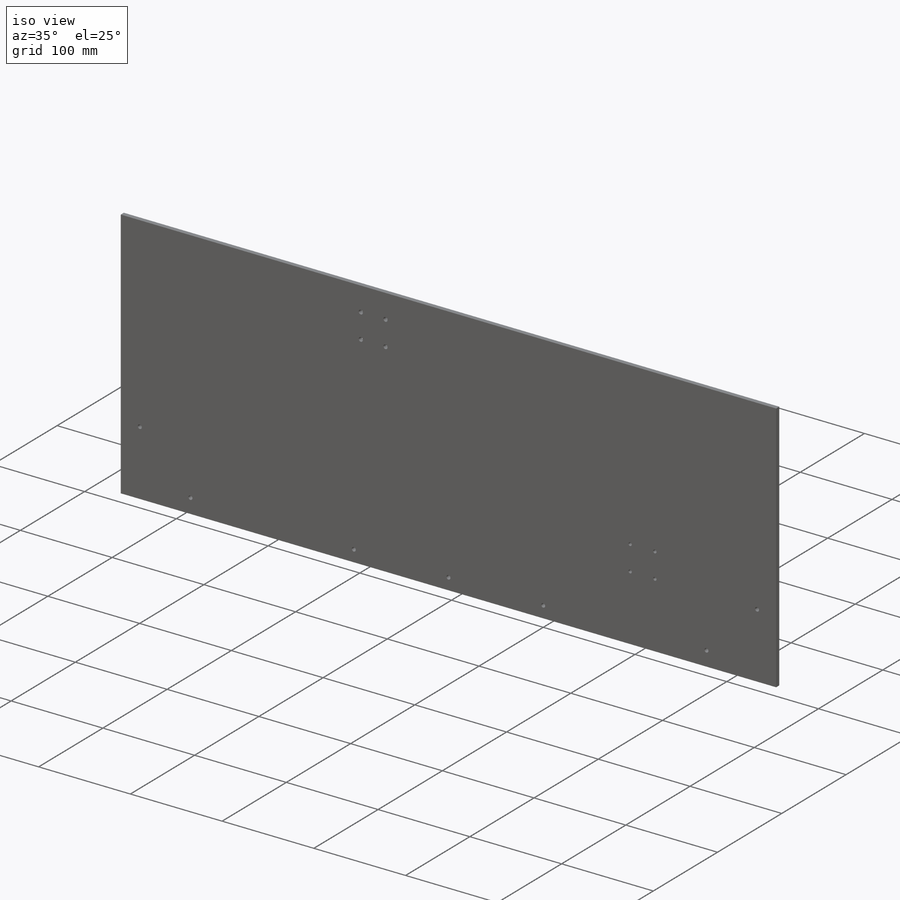
[diagram: iso view]
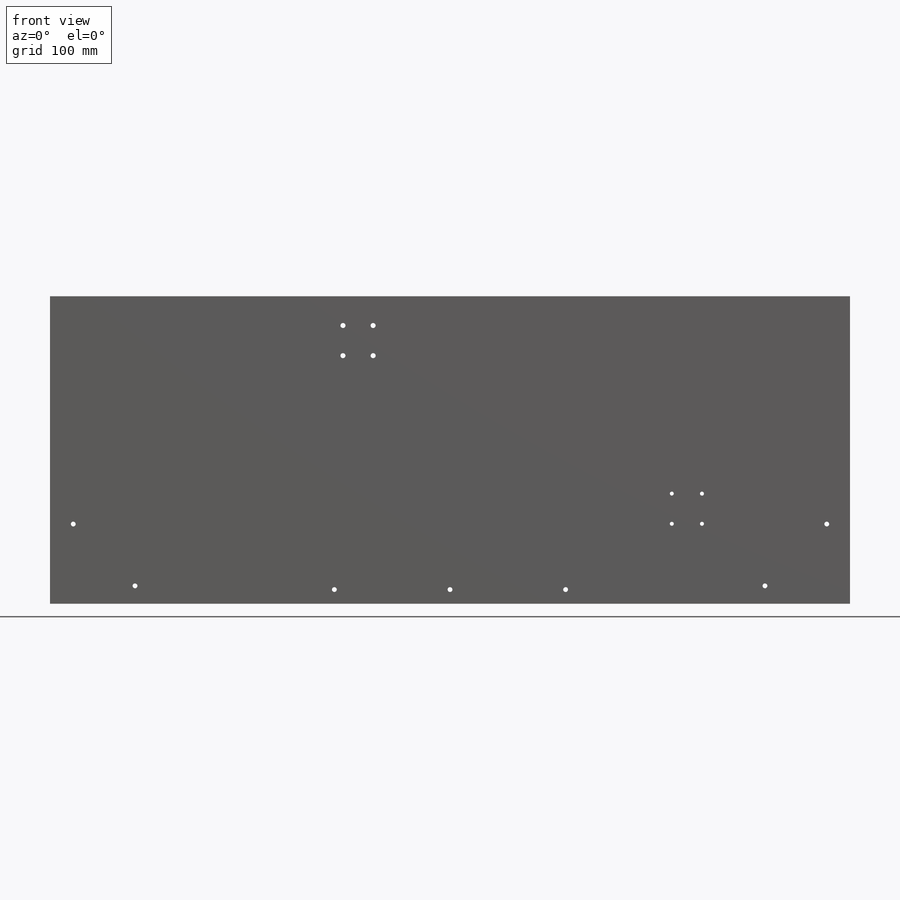
[diagram: front view]
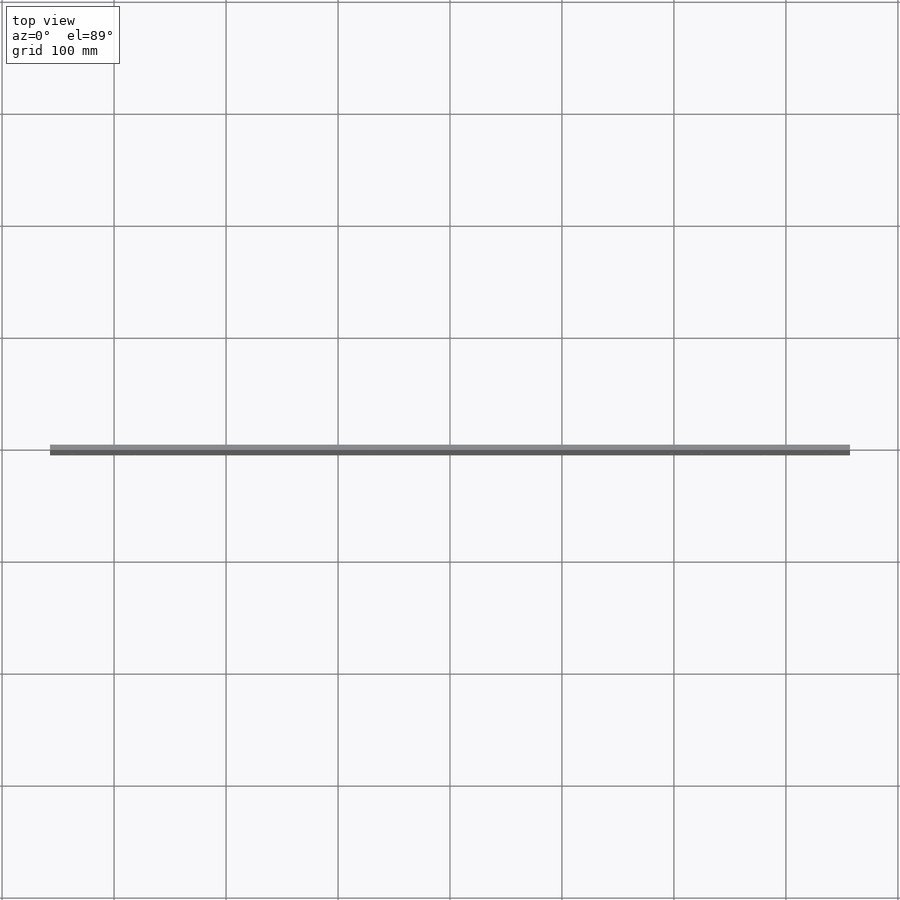
[diagram: top view]
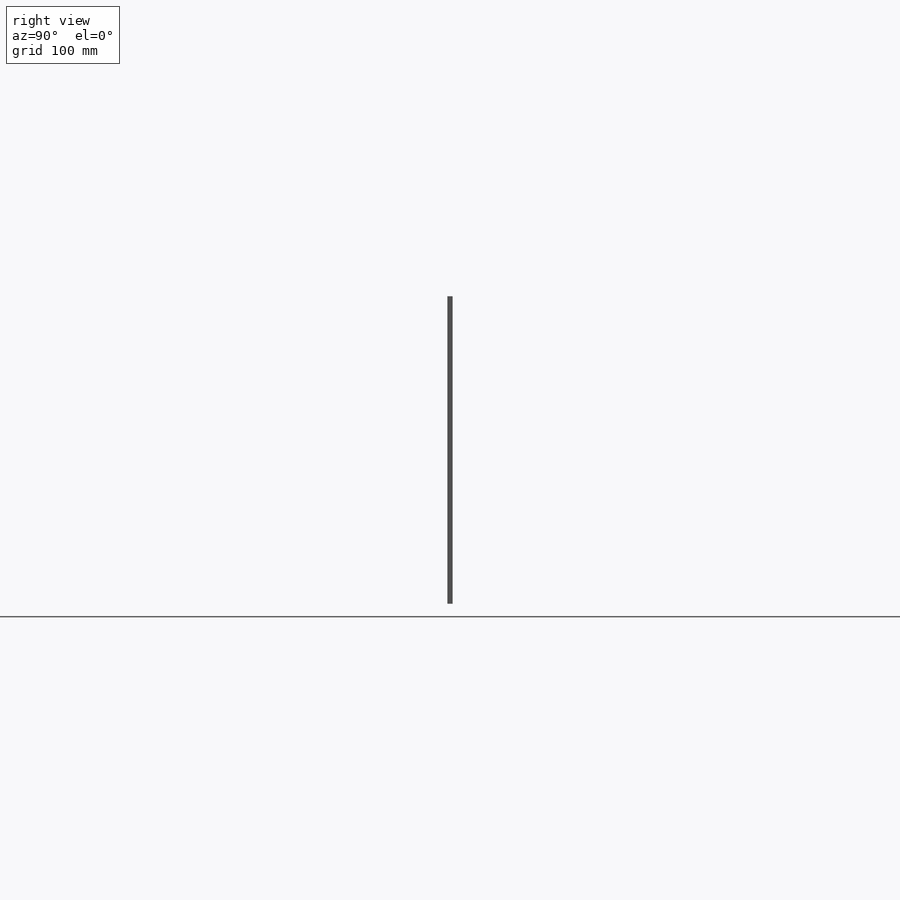
[diagram: right view]
SOLIDWORKS PART (.sldprt)
format: sldprt  version: not decoded by parser v0  size: 446,464 bytes
history: native  units: mm
features: sketch x12, cut_extrude x4, hole x3, extrude x2, material x1 (+12 scaffold rows collapsed)
feature tree (34):
  scaffold x12  (default folders/planes/origin — collapsed)
  material  "Material <not specified>"
  sketch  "Sketch1"  dims[D1=714.375mm D2=274.6375mm]
  extrude  "Boss-Extrude1"  Depth=4.7625mm
  sketch  "Sketch2"  dims[c1.D2=34.925mm c1.D3=5.25mm c1.D1=63.5mm c2.D3=279.4mm c2.D4=20.0mm c2.D5=~14.142136mm c3.D5=45.0deg c3.D7=317.5mm c3.D8=317.5mm c3.D6=4.0]
  cut_extrude  "Cut-Extrude1"  [1 undecoded]
  sketch  "Sketch4"  dims[c1.D1=6.35mm c1.D2=63.5mm c1.D3=8.89mm c1.D4=4.4958mm c1.D5=~178.59375mm c1.D6=357.1875mm c2.D5=279.4mm c2.D6=279.4mm c2.D7=25.4mm]
  cut_extrude  "Cut-Extrude3"  [1 undecoded]
  sketch  "Sketch5"  dims[D2=4.3053mm D1=63.5mm D3=127.0mm D4=215.9mm]
  cut_extrude  "Cut-Extrude4"  [1 undecoded]
  sketch  "Sketch7"
  extrude  "Boss-Extrude2"  [1 undecoded]
  hole  "#8 Clearance Hole1"  Diameter=4.3053mm Depth=74.422mm
  sketch  "Sketch9"  dims[D1=~20.77212mm D2=~75.94854mm D3=~71.18604mm D4=~16.00962mm D5=~20.77212mm D6=~75.94854mm]
  sketch  "Sketch8"  dims[hole-wizard template sketch: 50 standard entries collapsed; hole parameters above]
  hole  "#8 Clearance Hole2"  Diameter=4.3053mm Depth=74.422mm
  sketch  "Sketch12"  dims[D1=12.7mm D2=103.251mm D3=103.251mm]
  sketch  "Sketch11"  dims[hole-wizard template sketch: 50 standard entries collapsed; hole parameters above]
  hole  "#8 Clearance Hole3"  Diameter=4.4958mm Depth=74.422mm
  sketch  "Sketch15"  dims[D1=26.162mm D2=26.924mm D3=26.924mm D4=261.62mm]
  sketch  "Sketch14"  dims[hole-wizard template sketch: 50 standard entries collapsed; hole parameters above]
  sketch  "Sketch16"
  cut_extrude  "Cut-Extrude5"  Depth=4.7625mm
decode coverage: 15 of 21 modeling features carry decoded parameters
note: ~ marks probable driven/reference dimensions
note: 4 parameter values undecoded
summary: no parameter record found for 4 features
note: suppression state not decoded; provenance and decode notes live in map.json
